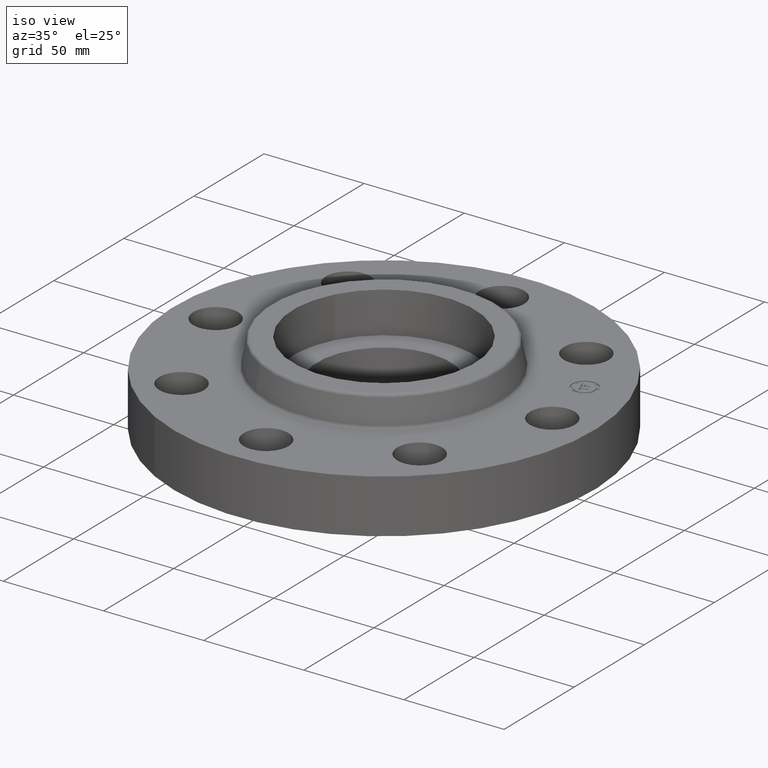
[diagram: clean part render]
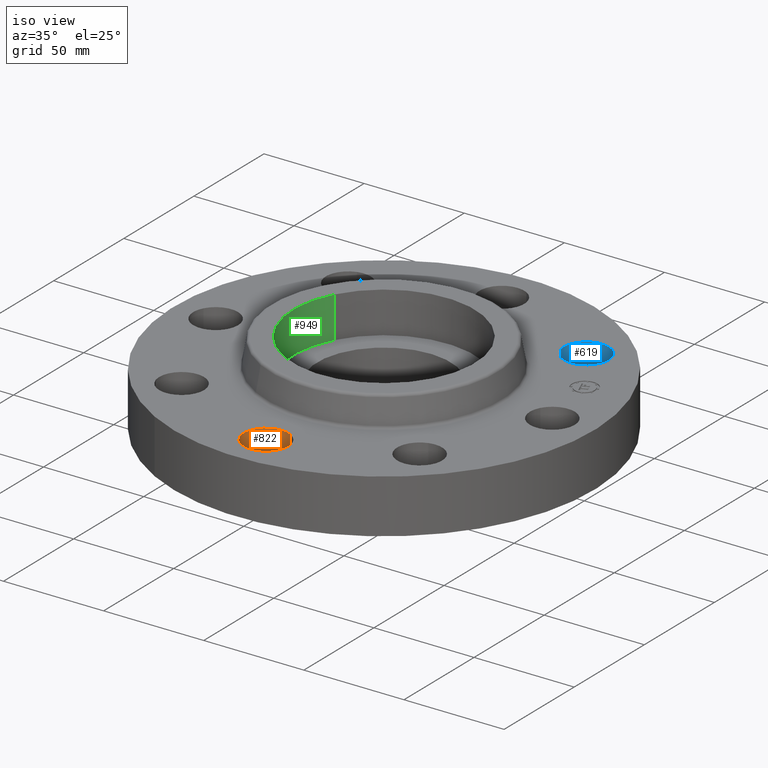
[diagram: same view with three faces highlighted in distinct colors, each labeled with its STEP entity id]
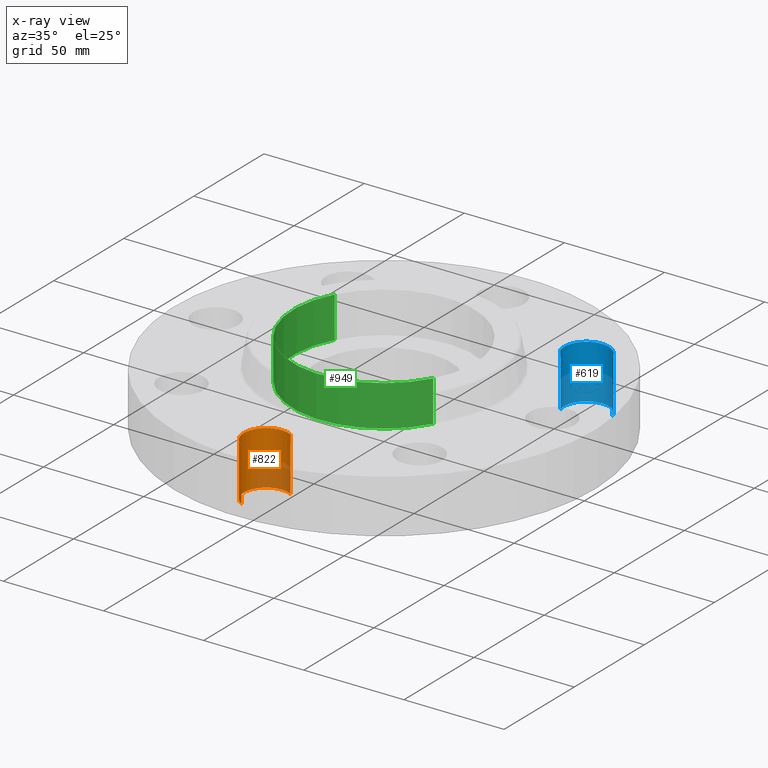
[diagram: x-ray of the same camera — body ghosted, the three highlighted faces saturated]
A machine part, iso view with three faces highlighted in distinct colors.
The next image is the same camera in x-ray (body ghosted, the three faces saturated) — at least one of them is partly hidden behind the body in this view.
Their STEP definitions:

[orange] entity #822 — the highlighted cylindrical surface (edge-blend (fillet) strip) has radius 11.176 mm, axis along (0, -0, -1).
#265=AXIS2_PLACEMENT_3D('Circle Axis2P3D',#263,#264,$) ;
#795=AXIS2_PLACEMENT_3D('Cylinder Axis2P3D',#792,#793,#794) ;
#813=AXIS2_PLACEMENT_3D('Circle Axis2P3D',#811,#812,$) ;
#258=CARTESIAN_POINT('Vertex',(0.210947236987,-2.92386367278,0.)) ;
#260=CARTESIAN_POINT('Vertex',(-0.210947236987,-3.69613632725,0.)) ;
#263=CARTESIAN_POINT('Axis2P3D Location',(-5.24514814784E-016,-3.31000000001,0.)) ;
#792=CARTESIAN_POINT('Axis2P3D Location',(-3.56803423843E-016,-3.31000000001,1.05606299213)) ;
#797=CARTESIAN_POINT('Line Origine',(-0.210947236987,-3.69613632725,0.530000000002)) ;
#801=CARTESIAN_POINT('Vertex',(-0.210947236987,-3.69613632725,1.06)) ;
#804=CARTESIAN_POINT('Line Origine',(0.210947236987,-2.92386367278,0.530000000002)) ;
#808=CARTESIAN_POINT('Vertex',(0.210947236987,-2.92386367278,1.06)) ;
#811=CARTESIAN_POINT('Axis2P3D Location',(-3.56803423843E-016,-3.31000000001,1.06)) ;
#264=DIRECTION('Axis2P3D Direction',(0.,0.,-0.0393700787402)) ;
#793=DIRECTION('Axis2P3D Direction',(0.,-0.,-0.0393700787402)) ;
#794=DIRECTION('Axis2P3D XDirection',(0.0188750212049,0.0345504945626,-0.)) ;
#798=DIRECTION('Vector Direction',(0.,0.,-0.0393700787402)) ;
#805=DIRECTION('Vector Direction',(0.,0.,-0.0393700787402)) ;
#812=DIRECTION('Axis2P3D Direction',(0.,-0.,-0.0393700787402)) ;
#799=VECTOR('Line Direction',#798,0.0393700787402) ;
#806=VECTOR('Line Direction',#805,0.0393700787402) ;
#817=ORIENTED_EDGE('',*,*,#803,.F.) ;
#818=ORIENTED_EDGE('',*,*,#267,.T.) ;
#819=ORIENTED_EDGE('',*,*,#810,.T.) ;
#820=ORIENTED_EDGE('',*,*,#815,.F.) ;
#822=ADVANCED_FACE('PartBody',(#821),#796,.F.) ;
#266=CIRCLE('generated circle',#265,0.440000000002) ;
#814=CIRCLE('generated circle',#813,0.440000000002) ;
#796=CYLINDRICAL_SURFACE('generated cylinder',#795,0.440000000002) ;
#267=EDGE_CURVE('',#261,#259,#266,.T.) ;
#803=EDGE_CURVE('',#261,#802,#800,.F.) ;
#810=EDGE_CURVE('',#259,#809,#807,.F.) ;
#815=EDGE_CURVE('',#802,#809,#814,.T.) ;
#816=EDGE_LOOP('',(#817,#818,#819,#820)) ;
#821=FACE_OUTER_BOUND('',#816,.T.) ;
#800=LINE('Line',#797,#799) ;
#807=LINE('Line',#804,#806) ;
#259=VERTEX_POINT('',#258) ;
#261=VERTEX_POINT('',#260) ;
#802=VERTEX_POINT('',#801) ;
#809=VERTEX_POINT('',#808) ;

[blue] entity #619 — the highlighted cylindrical surface (edge-blend (fillet) strip) has radius 11.176 mm, axis along (0, 0, -1).
#346=AXIS2_PLACEMENT_3D('Circle Axis2P3D',#344,#345,$) ;
#580=AXIS2_PLACEMENT_3D('Cylinder Axis2P3D',#577,#578,#579) ;
#610=AXIS2_PLACEMENT_3D('Circle Axis2P3D',#608,#609,$) ;
#344=CARTESIAN_POINT('Axis2P3D Location',(2.34052344574,2.34052344574,0.)) ;
#348=CARTESIAN_POINT('Vertex',(1.91832160854,2.21664605203,0.)) ;
#350=CARTESIAN_POINT('Vertex',(2.76272528293,2.46440083944,0.)) ;
#577=CARTESIAN_POINT('Axis2P3D Location',(2.34052344574,2.34052344574,1.05606299213)) ;
#582=CARTESIAN_POINT('Line Origine',(2.76272528293,2.46440083944,0.530000000002)) ;
#586=CARTESIAN_POINT('Vertex',(2.76272528293,2.46440083944,1.06)) ;
#589=CARTESIAN_POINT('Line Origine',(1.91832160854,2.21664605203,0.530000000002)) ;
#593=CARTESIAN_POINT('Vertex',(1.91832160854,2.21664605203,1.06)) ;
#608=CARTESIAN_POINT('Axis2P3D Location',(2.34052344574,2.34052344574,1.06)) ;
#345=DIRECTION('Axis2P3D Direction',(0.,0.,-0.0393700787402)) ;
#578=DIRECTION('Axis2P3D Direction',(0.,0.,-0.0393700787402)) ;
#579=DIRECTION('Axis2P3D XDirection',(-0.0377775444876,-0.0110842335096,-0.)) ;
#583=DIRECTION('Vector Direction',(0.,0.,-0.0393700787402)) ;
#590=DIRECTION('Vector Direction',(0.,0.,-0.0393700787402)) ;
#609=DIRECTION('Axis2P3D Direction',(0.,0.,-0.0393700787402)) ;
#584=VECTOR('Line Direction',#583,0.0393700787402) ;
#591=VECTOR('Line Direction',#590,0.0393700787402) ;
#614=ORIENTED_EDGE('',*,*,#595,.F.) ;
#615=ORIENTED_EDGE('',*,*,#352,.T.) ;
#616=ORIENTED_EDGE('',*,*,#588,.T.) ;
#617=ORIENTED_EDGE('',*,*,#612,.F.) ;
#619=ADVANCED_FACE('PartBody',(#618),#581,.F.) ;
#347=CIRCLE('generated circle',#346,0.440000000002) ;
#611=CIRCLE('generated circle',#610,0.440000000002) ;
#581=CYLINDRICAL_SURFACE('generated cylinder',#580,0.440000000002) ;
#352=EDGE_CURVE('',#349,#351,#347,.T.) ;
#588=EDGE_CURVE('',#351,#587,#585,.F.) ;
#595=EDGE_CURVE('',#349,#594,#592,.F.) ;
#612=EDGE_CURVE('',#594,#587,#611,.T.) ;
#613=EDGE_LOOP('',(#614,#615,#616,#617)) ;
#618=FACE_OUTER_BOUND('',#613,.T.) ;
#585=LINE('Line',#582,#584) ;
#592=LINE('Line',#589,#591) ;
#349=VERTEX_POINT('',#348) ;
#351=VERTEX_POINT('',#350) ;
#587=VERTEX_POINT('',#586) ;
#594=VERTEX_POINT('',#593) ;

[green] entity #949 — the highlighted cylindrical surface (partial cylindrical patch) has radius 45.339 mm, axis along (0, 0, -1).
#51=AXIS2_PLACEMENT_3D('Circle Axis2P3D',#49,#50,$) ;
#569=AXIS2_PLACEMENT_3D('Circle Axis2P3D',#567,#568,$) ;
#924=AXIS2_PLACEMENT_3D('Cylinder Axis2P3D',#921,#922,#923) ;
#44=CARTESIAN_POINT('Vertex',(-1.56648487298,0.855774586412,0.820000000003)) ;
#46=CARTESIAN_POINT('Vertex',(1.56648487298,-0.855774586412,0.820000000003)) ;
#49=CARTESIAN_POINT('Axis2P3D Location',(1.39870617276E-016,1.04902962957E-016,0.820000000003)) ;
#562=CARTESIAN_POINT('Vertex',(-1.56648487298,0.855774586412,1.63000000001)) ;
#564=CARTESIAN_POINT('Vertex',(1.56648487298,-0.855774586412,1.63000000001)) ;
#567=CARTESIAN_POINT('Axis2P3D Location',(0.,5.59482469102E-016,1.63000000001)) ;
#921=CARTESIAN_POINT('Axis2P3D Location',(1.39870617276E-016,1.04902962957E-016,1.62606299213)) ;
#926=CARTESIAN_POINT('Line Origine',(-1.56648487298,0.855774586412,1.225)) ;
#931=CARTESIAN_POINT('Line Origine',(1.56648487298,-0.855774586412,1.225)) ;
#50=DIRECTION('Axis2P3D Direction',(0.,0.,-0.0393700787402)) ;
#568=DIRECTION('Axis2P3D Direction',(0.,0.,-0.0393700787402)) ;
#922=DIRECTION('Axis2P3D Direction',(0.,0.,-0.0393700787402)) ;
#923=DIRECTION('Axis2P3D XDirection',(0.0345504945626,-0.0188750212049,0.)) ;
#927=DIRECTION('Vector Direction',(0.,0.,-0.0393700787402)) ;
#932=DIRECTION('Vector Direction',(0.,0.,-0.0393700787402)) ;
#928=VECTOR('Line Direction',#927,0.0393700787402) ;
#933=VECTOR('Line Direction',#932,0.0393700787402) ;
#944=ORIENTED_EDGE('',*,*,#571,.F.) ;
#945=ORIENTED_EDGE('',*,*,#935,.F.) ;
#946=ORIENTED_EDGE('',*,*,#53,.T.) ;
#947=ORIENTED_EDGE('',*,*,#930,.T.) ;
#949=ADVANCED_FACE('PartBody',(#948),#925,.F.) ;
#52=CIRCLE('generated circle',#51,1.78500000001) ;
#570=CIRCLE('generated circle',#569,1.78500000001) ;
#925=CYLINDRICAL_SURFACE('generated cylinder',#924,1.78500000001) ;
#53=EDGE_CURVE('',#47,#45,#52,.T.) ;
#571=EDGE_CURVE('',#565,#563,#570,.T.) ;
#930=EDGE_CURVE('',#45,#563,#929,.F.) ;
#935=EDGE_CURVE('',#47,#565,#934,.F.) ;
#943=EDGE_LOOP('',(#944,#945,#946,#947)) ;
#948=FACE_OUTER_BOUND('',#943,.T.) ;
#929=LINE('Line',#926,#928) ;
#934=LINE('Line',#931,#933) ;
#45=VERTEX_POINT('',#44) ;
#47=VERTEX_POINT('',#46) ;
#563=VERTEX_POINT('',#562) ;
#565=VERTEX_POINT('',#564) ;